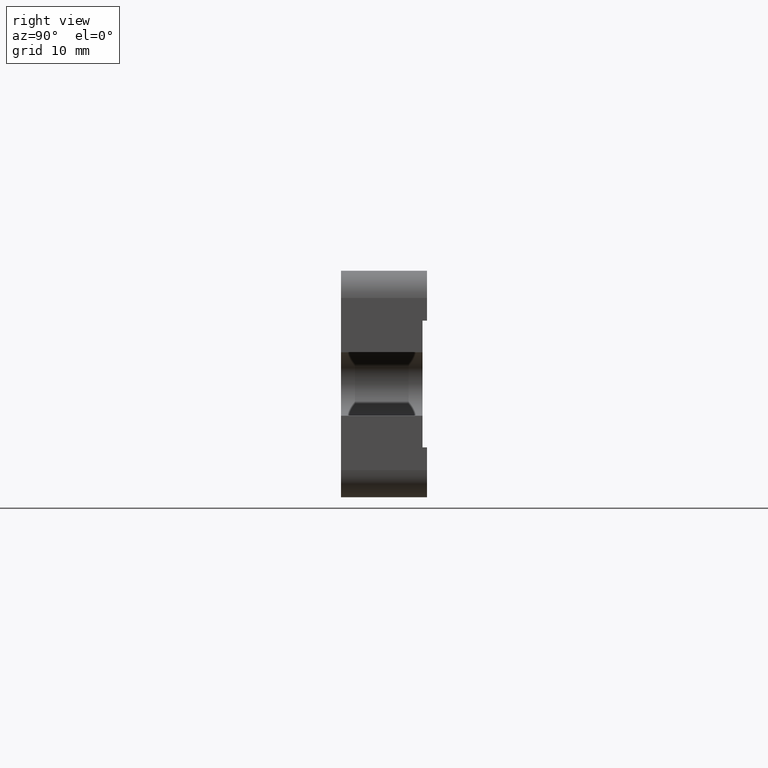
[diagram: clean part render]
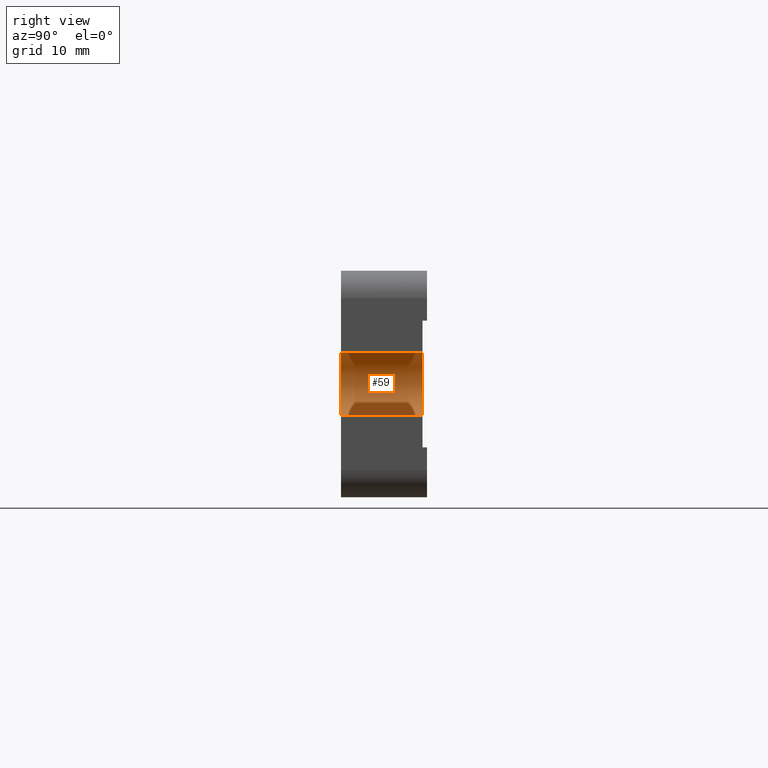
[diagram: same view with one face highlighted and labeled with its STEP entity id]
A machine part, right view. The second image highlights one B-rep face of the part: STEP entity #59.
In plain terms, the highlighted cylindrical surface (edge-blend (fillet) strip) has radius 3.5 mm, axis along (-0, -1, -0).
Its self-contained STEP definition (entity closure, byte-faithful):
#53 = FACE_OUTER_BOUND ( 'NONE', #89, .T. ) ;
#59 = ADVANCED_FACE ( 'NONE', ( #53 ), #387, .F. ) ;
#89 = EDGE_LOOP ( 'NONE', ( #283, #545, #636, #496 ) ) ;
#139 = VECTOR ( 'NONE', #292, 1000.000000000000000 ) ;
#144 = CARTESIAN_POINT ( 'NONE',  ( 18.00000000000000000, 9.000000000000000000, 0.0000000000000000000 ) ) ;
#159 = DIRECTION ( 'NONE',  ( 0.0000000000000000000, 0.0000000000000000000, 1.000000000000000000 ) ) ;
#167 = VERTEX_POINT ( 'NONE', #171 ) ;
#169 = DIRECTION ( 'NONE',  ( 0.0000000000000000000, 1.000000000000000000, 0.0000000000000000000 ) ) ;
#171 = CARTESIAN_POINT ( 'NONE',  ( 18.00000000000000400, 9.000000000000000000, -3.500000000000003600 ) ) ;
#276 = LINE ( 'NONE', #786, #139 ) ;
#283 = ORIENTED_EDGE ( 'NONE', *, *, #421, .F. ) ;
#284 = CARTESIAN_POINT ( 'NONE',  ( 18.00000000000000000, 9.500000000000000000, 0.0000000000000000000 ) ) ;
#290 = AXIS2_PLACEMENT_3D ( 'NONE', #284, #694, #423 ) ;
#292 = DIRECTION ( 'NONE',  ( -0.0000000000000000000, -1.000000000000000000, -0.0000000000000000000 ) ) ;
#314 = CARTESIAN_POINT ( 'NONE',  ( 18.00000000000000400, 0.0000000000000000000, -3.500000000000003600 ) ) ;
#345 = LINE ( 'NONE', #527, #656 ) ;
#354 = VERTEX_POINT ( 'NONE', #738 ) ;
#387 = CYLINDRICAL_SURFACE ( 'NONE', #290, 3.500000000000003600 ) ;
#421 = EDGE_CURVE ( 'NONE', #167, #644, #276, .T. ) ;
#423 = DIRECTION ( 'NONE',  ( 0.0000000000000000000, 0.0000000000000000000, -1.000000000000000000 ) ) ;
#482 = CARTESIAN_POINT ( 'NONE',  ( 18.00000000000000400, 0.0000000000000000000, 3.500000000000003600 ) ) ;
#496 = ORIENTED_EDGE ( 'NONE', *, *, #870, .F. ) ;
#508 = EDGE_CURVE ( 'NONE', #167, #354, #858, .T. ) ;
#527 = CARTESIAN_POINT ( 'NONE',  ( 18.00000000000000400, 9.500000000000000000, 3.500000000000003600 ) ) ;
#545 = ORIENTED_EDGE ( 'NONE', *, *, #508, .T. ) ;
#573 = AXIS2_PLACEMENT_3D ( 'NONE', #791, #579, #159 ) ;
#579 = DIRECTION ( 'NONE',  ( 0.0000000000000000000, 1.000000000000000000, -0.0000000000000000000 ) ) ;
#589 = AXIS2_PLACEMENT_3D ( 'NONE', #144, #169, #657 ) ;
#636 = ORIENTED_EDGE ( 'NONE', *, *, #648, .T. ) ;
#644 = VERTEX_POINT ( 'NONE', #314 ) ;
#648 = EDGE_CURVE ( 'NONE', #354, #846, #345, .T. ) ;
#654 = CIRCLE ( 'NONE', #573, 3.500000000000003600 ) ;
#656 = VECTOR ( 'NONE', #679, 1000.000000000000000 ) ;
#657 = DIRECTION ( 'NONE',  ( 0.0000000000000000000, 0.0000000000000000000, 1.000000000000000000 ) ) ;
#679 = DIRECTION ( 'NONE',  ( -0.0000000000000000000, -1.000000000000000000, -0.0000000000000000000 ) ) ;
#694 = DIRECTION ( 'NONE',  ( -0.0000000000000000000, -1.000000000000000000, -0.0000000000000000000 ) ) ;
#738 = CARTESIAN_POINT ( 'NONE',  ( 18.00000000000000000, 9.000000000000000000, 3.500000000000003600 ) ) ;
#786 = CARTESIAN_POINT ( 'NONE',  ( 18.00000000000000400, 9.500000000000000000, -3.500000000000003600 ) ) ;
#791 = CARTESIAN_POINT ( 'NONE',  ( 18.00000000000000000, 0.0000000000000000000, 0.0000000000000000000 ) ) ;
#846 = VERTEX_POINT ( 'NONE', #482 ) ;
#858 = CIRCLE ( 'NONE', #589, 3.500000000000003600 ) ;
#870 = EDGE_CURVE ( 'NONE', #644, #846, #654, .T. ) ;